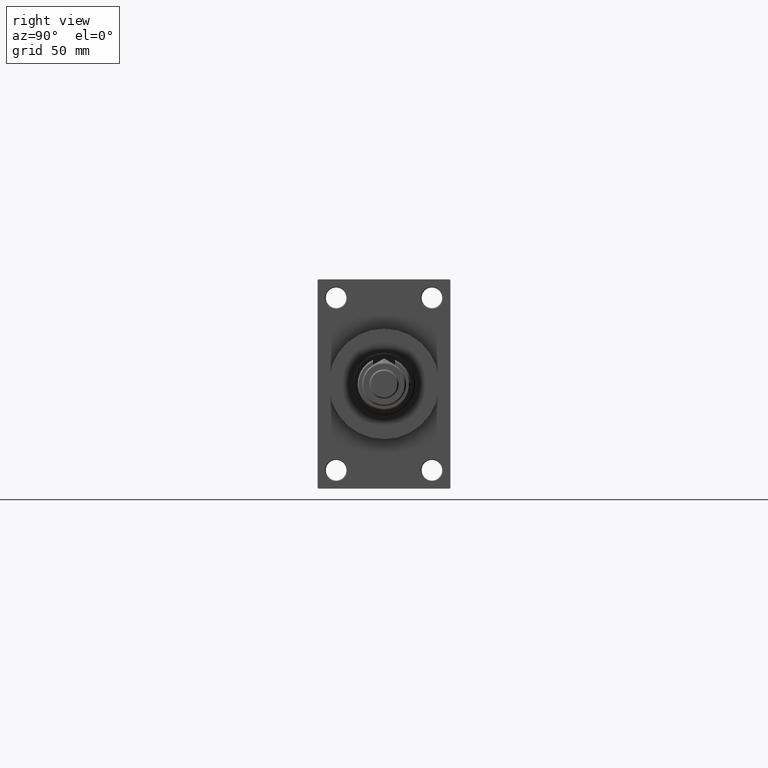
[diagram: clean part render]
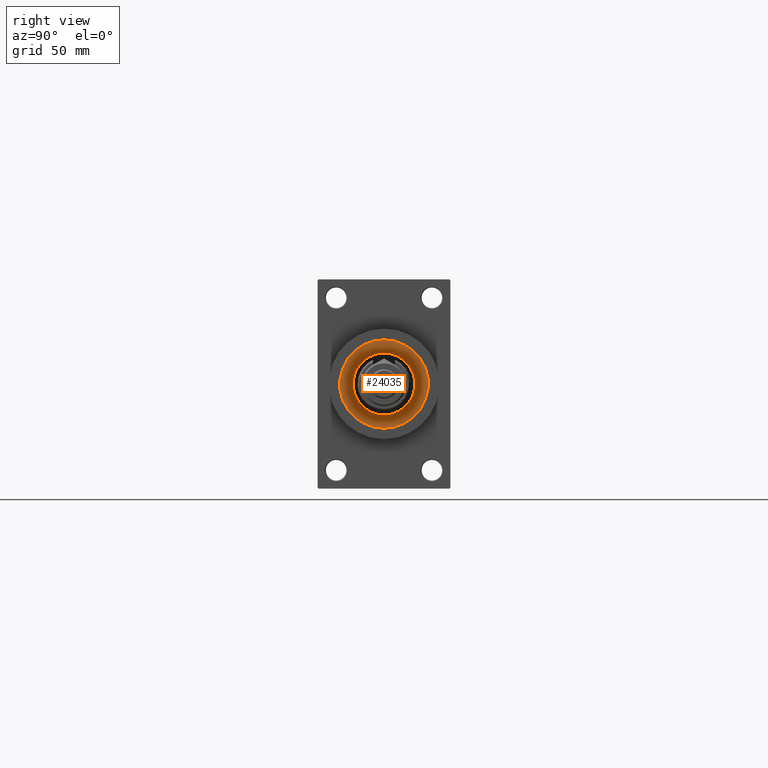
[diagram: same view with one face highlighted and labeled with its STEP entity id]
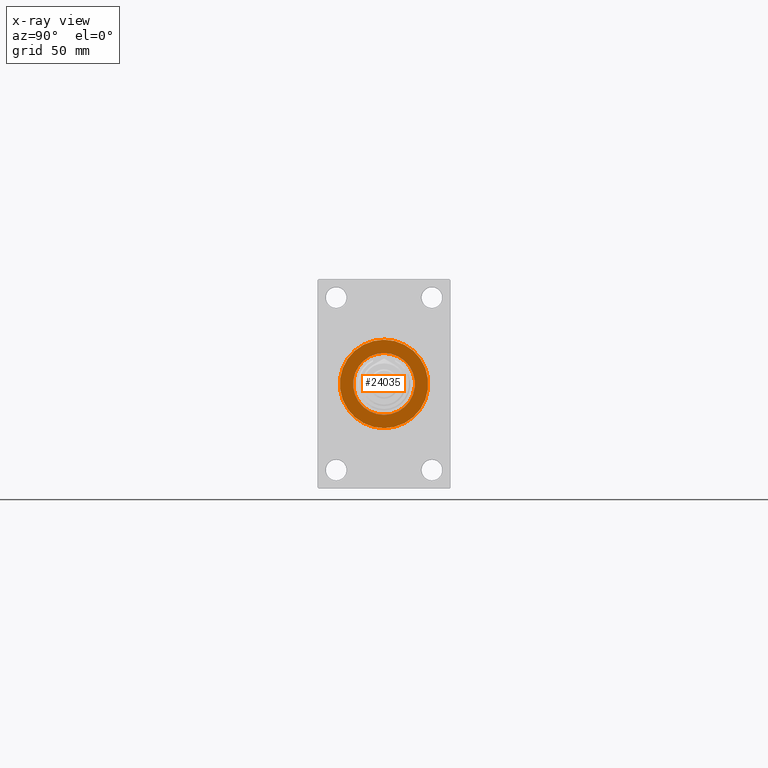
[diagram: x-ray of the same camera — body ghosted, the highlighted face saturated]
A machine part, right view. The second image highlights one B-rep face of the part: STEP entity #24035.
The next image is the same camera in x-ray: the body ghosted, the highlighted face saturated — about 0% of this face is hidden behind the body in this view.
In plain terms, the highlighted planar face has unit normal (1, -0, -0).
Its self-contained STEP definition (entity closure, byte-faithful):
#1183 = FACE_BOUND ( 'NONE', #49575, .T. ) ;
#3768 = DIRECTION ( 'NONE',  ( 1.000000000000000000, 0.000000000000000000, 0.000000000000000000 ) ) ;
#5141 = VERTEX_POINT ( 'NONE', #41729 ) ;
#5235 = ORIENTED_EDGE ( 'NONE', *, *, #32114, .T. ) ;
#5765 = CARTESIAN_POINT ( 'NONE',  ( 0.000000000000000000, 0.000000000000000000, 43.25999999999999801 ) ) ;
#8783 = DIRECTION ( 'NONE',  ( 0.000000000000000000, 0.000000000000000000, 1.000000000000000000 ) ) ;
#8861 = CIRCLE ( 'NONE', #38781, 21.00000000000000000 ) ;
#9256 = CARTESIAN_POINT ( 'NONE',  ( 30.00000000000000000, 3.673940397442059178E-15, 43.25999999999999801 ) ) ;
#9286 = PLANE ( 'NONE',  #36969 ) ;
#9801 = DIRECTION ( 'NONE',  ( 0.000000000000000000, 0.000000000000000000, 1.000000000000000000 ) ) ;
#10397 = EDGE_CURVE ( 'NONE', #34396, #5141, #8861, .T. ) ;
#12154 = AXIS2_PLACEMENT_3D ( 'NONE', #5765, #9801, #25215 ) ;
#22974 = CARTESIAN_POINT ( 'NONE',  ( 0.000000000000000000, 0.000000000000000000, 43.25999999999999801 ) ) ;
#23324 = DIRECTION ( 'NONE',  ( 0.000000000000000000, 0.000000000000000000, 1.000000000000000000 ) ) ;
#24035 = ADVANCED_FACE ( 'NONE', ( #1183, #40678 ), #9286, .T. ) ;
#24067 = DIRECTION ( 'NONE',  ( 1.000000000000000000, 0.000000000000000000, 0.000000000000000000 ) ) ;
#24124 = AXIS2_PLACEMENT_3D ( 'NONE', #22974, #38442, #3768 ) ;
#24207 = AXIS2_PLACEMENT_3D ( 'NONE', #27628, #23324, #24067 ) ;
#25215 = DIRECTION ( 'NONE',  ( 1.000000000000000000, 0.000000000000000000, 0.000000000000000000 ) ) ;
#27628 = CARTESIAN_POINT ( 'NONE',  ( 0.000000000000000000, 0.000000000000000000, 43.25999999999999801 ) ) ;
#28056 = VERTEX_POINT ( 'NONE', #9256 ) ;
#28151 = VERTEX_POINT ( 'NONE', #29965 ) ;
#29965 = CARTESIAN_POINT ( 'NONE',  ( -30.00000000000000000, 0.000000000000000000, 43.25999999999999801 ) ) ;
#31530 = CIRCLE ( 'NONE', #24207, 30.00000000000000000 ) ;
#31889 = ORIENTED_EDGE ( 'NONE', *, *, #40023, .T. ) ;
#32114 = EDGE_CURVE ( 'NONE', #28056, #28151, #31530, .T. ) ;
#32199 = CIRCLE ( 'NONE', #24124, 30.00000000000000000 ) ;
#32306 = CARTESIAN_POINT ( 'NONE',  ( 0.000000000000000000, 0.000000000000000000, 43.25999999999999801 ) ) ;
#33397 = CARTESIAN_POINT ( 'NONE',  ( -21.00000000000000000, 0.000000000000000000, 43.25999999999999801 ) ) ;
#34396 = VERTEX_POINT ( 'NONE', #33397 ) ;
#34934 = ORIENTED_EDGE ( 'NONE', *, *, #10397, .F. ) ;
#36969 = AXIS2_PLACEMENT_3D ( 'NONE', #32306, #8783, #44475 ) ;
#38442 = DIRECTION ( 'NONE',  ( 0.000000000000000000, 0.000000000000000000, 1.000000000000000000 ) ) ;
#38781 = AXIS2_PLACEMENT_3D ( 'NONE', #41670, #41433, #46223 ) ;
#38862 = CIRCLE ( 'NONE', #12154, 21.00000000000000000 ) ;
#40023 = EDGE_CURVE ( 'NONE', #28151, #28056, #32199, .T. ) ;
#40678 = FACE_OUTER_BOUND ( 'NONE', #44559, .T. ) ;
#41303 = ORIENTED_EDGE ( 'NONE', *, *, #44607, .F. ) ;
#41433 = DIRECTION ( 'NONE',  ( 0.000000000000000000, 0.000000000000000000, 1.000000000000000000 ) ) ;
#41670 = CARTESIAN_POINT ( 'NONE',  ( 0.000000000000000000, 0.000000000000000000, 43.25999999999999801 ) ) ;
#41729 = CARTESIAN_POINT ( 'NONE',  ( 21.00000000000000000, 2.571758278209441661E-15, 43.25999999999999801 ) ) ;
#44475 = DIRECTION ( 'NONE',  ( 1.000000000000000000, 0.000000000000000000, -0.000000000000000000 ) ) ;
#44559 = EDGE_LOOP ( 'NONE', ( #31889, #5235 ) ) ;
#44607 = EDGE_CURVE ( 'NONE', #5141, #34396, #38862, .T. ) ;
#46223 = DIRECTION ( 'NONE',  ( 1.000000000000000000, 0.000000000000000000, 0.000000000000000000 ) ) ;
#49575 = EDGE_LOOP ( 'NONE', ( #34934, #41303 ) ) ;